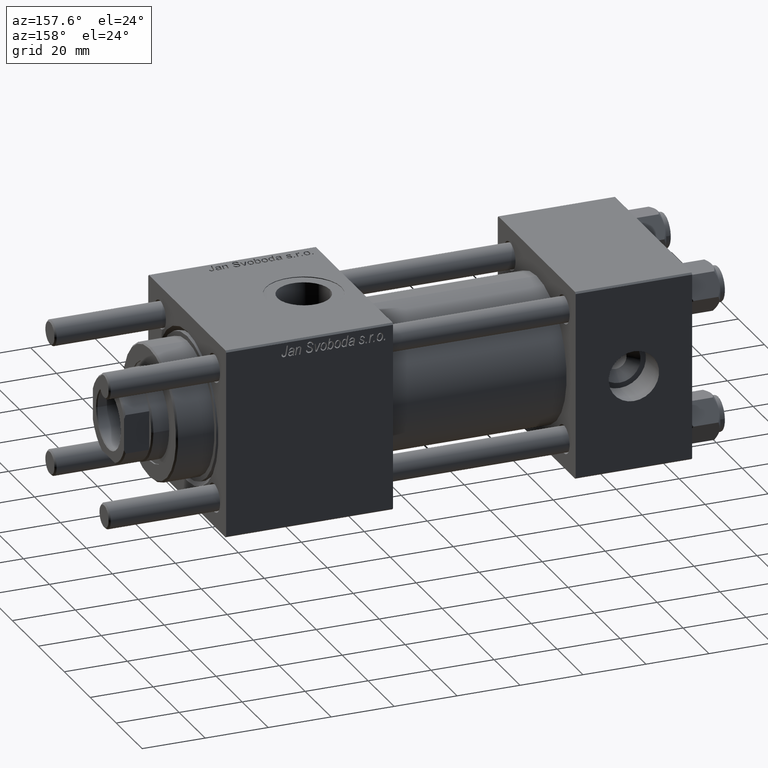
[diagram: clean part render]
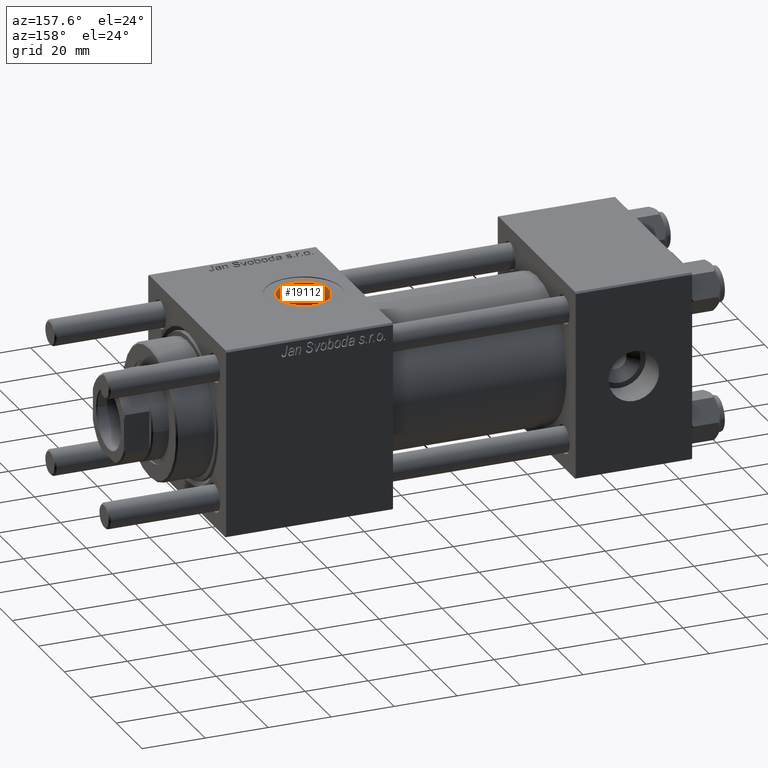
[diagram: same view with one face highlighted and labeled with its STEP entity id]
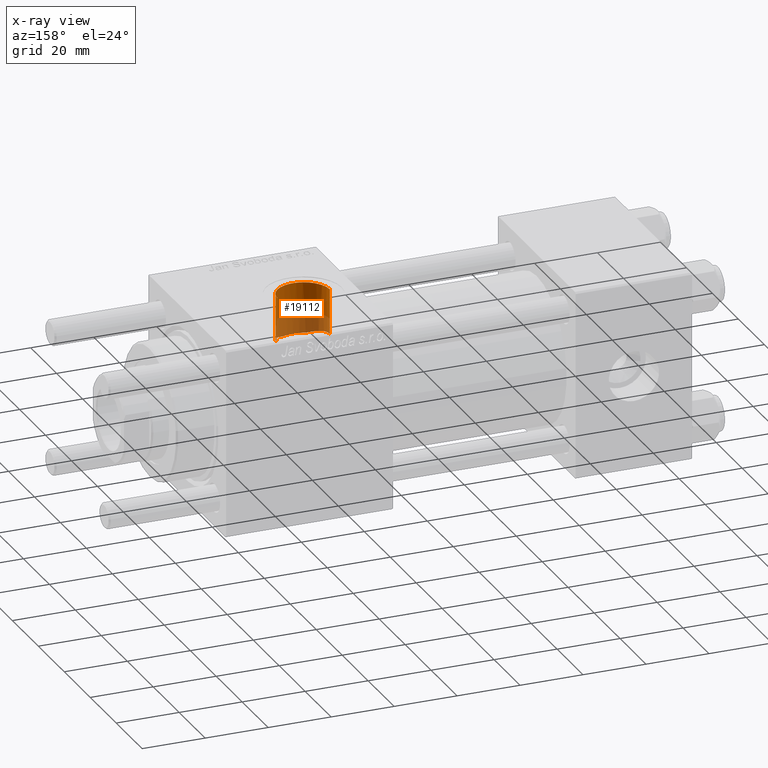
[diagram: x-ray of the same camera — body ghosted, the highlighted face saturated]
A machine part, auxiliary view. The second image highlights one B-rep face of the part: STEP entity #19112.
The next image is the same camera in x-ray: the body ghosted, the highlighted face saturated — about 40% of this face is hidden behind the body in this view.
In plain terms, the highlighted cylindrical surface (edge-blend (fillet) strip) has radius 8.33 mm, axis along (0, 0, -1).
Its self-contained STEP definition (entity closure, byte-faithful):
#716 = CARTESIAN_POINT ( 'NONE',  ( 114.7548501967455081, -7.435724578008534813, 13.59999999999999076 ) ) ;
#772 = VERTEX_POINT ( 'NONE', #2169 ) ;
#1402 = CARTESIAN_POINT ( 'NONE',  ( 119.3300000000000125, -2.449316168263869821E-15, 29.79999999999999716 ) ) ;
#1709 = DIRECTION ( 'NONE',  ( 0.000000000000000000, 0.000000000000000000, -1.000000000000000000 ) ) ;
#2169 = CARTESIAN_POINT ( 'NONE',  ( 119.2999999999999829, -0.7063285354565423946, 15.48389808801387701 ) ) ;
#2445 = CARTESIAN_POINT ( 'NONE',  ( 118.7215032992636736, -3.145651711574988241, 15.18130506059506679 ) ) ;
#3318 = CARTESIAN_POINT ( 'NONE',  ( 115.9563515716283746, -6.704148802593676848, 13.97684504926374061 ) ) ;
#3371 = CARTESIAN_POINT ( 'NONE',  ( 119.2999999999999829, -0.7063285354565423946, 22.48891060056044111 ) ) ;
#4016 = CARTESIAN_POINT ( 'NONE',  ( 102.6700000000000301, -0.3932737753490447297, 15.50000000000000178 ) ) ;
#4313 = CARTESIAN_POINT ( 'NONE',  ( 119.3300000000000125, -2.449316168263869032E-15, 52.79999999999999716 ) ) ;
#4582 = CIRCLE ( 'NONE', #31996, 8.330000000000003624 ) ;
#5055 = EDGE_CURVE ( 'NONE', #41236, #42975, #29410, .T. ) ;
#6869 = EDGE_CURVE ( 'NONE', #58483, #8494, #54793, .T. ) ;
#6886 = CARTESIAN_POINT ( 'NONE',  ( 119.3200361445783102, -0.4708856903043605602, 22.49630535626710781 ) ) ;
#6892 = CARTESIAN_POINT ( 'NONE',  ( 119.2999999999999829, -0.7063285354565423946, 15.48389808801387701 ) ) ;
#7170 = CARTESIAN_POINT ( 'NONE',  ( 117.4654438345355487, -5.264046141787121158, 14.58145607373045571 ) ) ;
#7575 = FACE_OUTER_BOUND ( 'NONE', #22472, .T. ) ;
#8044 = CARTESIAN_POINT ( 'NONE',  ( 119.3300000000000125, -0.2354428451521790588, 22.50000000000000355 ) ) ;
#8494 = VERTEX_POINT ( 'NONE', #716 ) ;
#9701 = CARTESIAN_POINT ( 'NONE',  ( 111.0000000000000000, -3.469446951953613794E-15, 29.79999999999999716 ) ) ;
#10609 = VECTOR ( 'NONE', #49615, 1000.000000000000000 ) ;
#11464 = DIRECTION ( 'NONE',  ( -1.000000000000000000, 0.000000000000000000, 0.000000000000000000 ) ) ;
#11501 = CARTESIAN_POINT ( 'NONE',  ( 102.6700000000000017, -3.469446951953613794E-15, 52.79999999999999716 ) ) ;
#12044 = CYLINDRICAL_SURFACE ( 'NONE', #28385, 8.330000000000003624 ) ;
#12326 = CARTESIAN_POINT ( 'NONE',  ( 103.7356139241942827, -4.094008462183724717, 14.95330218343579709 ) ) ;
#12893 = ORIENTED_EDGE ( 'NONE', *, *, #40272, .T. ) ;
#12914 = CARTESIAN_POINT ( 'NONE',  ( 106.5580543014319232, -7.088758972554062510, 13.78970152060303711 ) ) ;
#15754 = EDGE_CURVE ( 'NONE', #42500, #49350, #20932, .T. ) ;
#15901 = CARTESIAN_POINT ( 'NONE',  ( 111.0000000000000000, -3.469446951953613794E-15, 52.79999999999999716 ) ) ;
#16091 = CARTESIAN_POINT ( 'NONE',  ( 118.5780231920914360, -3.476751477085508135, 15.10853693558145494 ) ) ;
#16754 = CARTESIAN_POINT ( 'NONE',  ( 105.9411433775953384, -6.660665606237818892, 14.00684504084867754 ) ) ;
#17054 = CARTESIAN_POINT ( 'NONE',  ( 103.5555123538905207, -3.757474466741724584, 15.04203335714862710 ) ) ;
#19112 = ADVANCED_FACE ( 'NONE', ( #7575 ), #12044, .F. ) ;
#20932 = LINE ( 'NONE', #11501, #41003 ) ;
#21078 = CARTESIAN_POINT ( 'NONE',  ( 115.0719793388101806, -7.275582495151264872, 13.68755679569670036 ) ) ;
#21207 = CARTESIAN_POINT ( 'NONE',  ( 102.6699999999996180, -2.713081726590588117E-14, 15.50000000000020428 ) ) ;
#21296 = VECTOR ( 'NONE', #41256, 1000.000000000000000 ) ;
#22472 = EDGE_LOOP ( 'NONE', ( #25284, #53835, #49965, #58202, #46570, #25746, #12893, #55277 ) ) ;
#23983 = EDGE_CURVE ( 'NONE', #36298, #41236, #37151, .T. ) ;
#24285 = DIRECTION ( 'NONE',  ( 0.000000000000000000, 0.000000000000000000, 1.000000000000000000 ) ) ;
#25233 = CARTESIAN_POINT ( 'NONE',  ( 116.9996026483513276, -5.789379398717359848, 14.38096412590969564 ) ) ;
#25284 = ORIENTED_EDGE ( 'NONE', *, *, #47976, .F. ) ;
#25524 = CARTESIAN_POINT ( 'NONE',  ( 116.7527035097904502, -6.034536163537686626, 14.27924648151569897 ) ) ;
#25746 = ORIENTED_EDGE ( 'NONE', *, *, #6869, .F. ) ;
#26412 = CARTESIAN_POINT ( 'NONE',  ( 115.3773959923152148, -7.095733675622498460, 13.78217589145789645 ) ) ;
#27736 = DIRECTION ( 'NONE',  ( 1.000000000000000000, 0.000000000000000000, 0.000000000000000000 ) ) ;
#28385 = AXIS2_PLACEMENT_3D ( 'NONE', #15901, #52592, #11464 ) ;
#29100 = CARTESIAN_POINT ( 'NONE',  ( 119.2379181272459761, -1.435846766692881138, 15.45061967576075013 ) ) ;
#29235 = AXIS2_PLACEMENT_3D ( 'NONE', #34031, #24285, #38170 ) ;
#29410 = B_SPLINE_CURVE_WITH_KNOTS ( 'NONE', 3,
 ( #48607, #8044, #6886, #34700 ),
 .UNSPECIFIED., .F., .F.,
 ( 4, 4 ),
 ( 0.0007063285354565328363, 0.001412657070913077816 ),
 .UNSPECIFIED. ) ;
#29677 = CARTESIAN_POINT ( 'NONE',  ( 117.6814859054843367, -4.986894924185446776, 14.67899340481585746 ) ) ;
#30357 = CARTESIAN_POINT ( 'NONE',  ( 103.2388751121312396, -3.050237885181526387, 15.20123122413415828 ) ) ;
#30950 = CARTESIAN_POINT ( 'NONE',  ( 104.1369027071221751, -4.736043274220092414, 14.76252165391442794 ) ) ;
#31245 = CARTESIAN_POINT ( 'NONE',  ( 105.1064272110299385, -5.898864207807588578, 14.33631558793831573 ) ) ;
#31996 = AXIS2_PLACEMENT_3D ( 'NONE', #9701, #50253, #27736 ) ;
#32389 = CARTESIAN_POINT ( 'NONE',  ( 119.2999999999999829, -0.7063285354565423946, 52.79999999999999716 ) ) ;
#34031 = CARTESIAN_POINT ( 'NONE',  ( 111.0000000000000000, -3.469446951953613794E-15, 13.59999999999999076 ) ) ;
#34118 = CARTESIAN_POINT ( 'NONE',  ( 118.2557022334251258, -4.107191428843018244, 14.94947048340120332 ) ) ;
#34700 = CARTESIAN_POINT ( 'NONE',  ( 119.2999999999999829, -0.7063285354565423946, 22.48891060056044111 ) ) ;
#34706 = CARTESIAN_POINT ( 'NONE',  ( 114.7548501967455081, -7.435724578008534813, 13.59999999999999076 ) ) ;
#34800 = CARTESIAN_POINT ( 'NONE',  ( 104.8421395764249837, -5.622509492967815881, 14.44759832893447360 ) ) ;
#35098 = CARTESIAN_POINT ( 'NONE',  ( 102.6699999999996180, -2.713081726590588117E-14, 15.50000000000020428 ) ) ;
#35684 = CARTESIAN_POINT ( 'NONE',  ( 107.2451498032544919, -7.435724578008534813, 13.59999999999999076 ) ) ;
#36298 = VERTEX_POINT ( 'NONE', #1402 ) ;
#37151 = LINE ( 'NONE', #4313, #10609 ) ;
#38170 = DIRECTION ( 'NONE',  ( 1.000000000000000000, 0.000000000000000000, 0.000000000000000000 ) ) ;
#39522 = CARTESIAN_POINT ( 'NONE',  ( 102.8089720379881413, -1.564748737126397504, 15.42568822226018455 ) ) ;
#39573 = EDGE_CURVE ( 'NONE', #772, #42975, #45722, .T. ) ;
#40117 = CARTESIAN_POINT ( 'NONE',  ( 102.8906515532532637, -1.943315834972990430, 15.38227098439064022 ) ) ;
#40272 = EDGE_CURVE ( 'NONE', #58483, #49350, #43634, .T. ) ;
#41003 = VECTOR ( 'NONE', #1709, 1000.000000000000000 ) ;
#41236 = VERTEX_POINT ( 'NONE', #47993 ) ;
#41256 = DIRECTION ( 'NONE',  ( -0.000000000000000000, -0.000000000000000000, 1.000000000000000000 ) ) ;
#42500 = VERTEX_POINT ( 'NONE', #55023 ) ;
#42975 = VERTEX_POINT ( 'NONE', #3371 ) ;
#43160 = CARTESIAN_POINT ( 'NONE',  ( 107.2451498032544919, -7.435724578008534813, 13.59999999999999076 ) ) ;
#43634 = B_SPLINE_CURVE_WITH_KNOTS ( 'NONE', 3,
 ( #35684, #12914, #16754, #31245, #34800, #52871, #30950, #12326, #17054, #30357, #49012, #40117, #39522, #58188, #4016, #35098 ),
 .UNSPECIFIED., .F., .F.,
 ( 4, 2, 2, 2, 2, 2, 2, 4 ),
 ( 1.762687342693953287E-17, 0.002343612196725057811, 0.003515418295087579994, 0.004687224393450101743, 0.005859030491812623059, 0.007030836590175145243, 0.008202642688537667426, 0.009374448786900189609 ),
 .UNSPECIFIED. ) ;
#45722 = LINE ( 'NONE', #32389, #21296 ) ;
#46570 = ORIENTED_EDGE ( 'NONE', *, *, #50665, .T. ) ;
#47160 = CARTESIAN_POINT ( 'NONE',  ( 119.0832175232422827, -2.135847849508031526, 15.36739229984345556 ) ) ;
#47976 = EDGE_CURVE ( 'NONE', #36298, #42500, #4582, .T. ) ;
#47993 = CARTESIAN_POINT ( 'NONE',  ( 119.3300000000000125, 2.755455270027974659E-15, 22.50000000000000355 ) ) ;
#48607 = CARTESIAN_POINT ( 'NONE',  ( 119.3300000000000125, 2.755455270027974659E-15, 22.50000000000000355 ) ) ;
#49012 = CARTESIAN_POINT ( 'NONE',  ( 103.1052114789570311, -2.685204437881589801, 15.27024604249924522 ) ) ;
#49350 = VERTEX_POINT ( 'NONE', #21207 ) ;
#49615 = DIRECTION ( 'NONE',  ( 0.000000000000000000, 0.000000000000000000, -1.000000000000000000 ) ) ;
#49965 = ORIENTED_EDGE ( 'NONE', *, *, #5055, .T. ) ;
#50253 = DIRECTION ( 'NONE',  ( -0.000000000000000000, -0.000000000000000000, -1.000000000000000000 ) ) ;
#50665 = EDGE_CURVE ( 'NONE', #772, #8494, #55714, .T. ) ;
#52197 = CARTESIAN_POINT ( 'NONE',  ( 118.0762267006177098, -4.408899020335755203, 14.86282536370445229 ) ) ;
#52592 = DIRECTION ( 'NONE',  ( 0.000000000000000000, 0.000000000000000000, -1.000000000000000000 ) ) ;
#52871 = CARTESIAN_POINT ( 'NONE',  ( 104.3580999100944950, -5.041529647880462761, 14.66044642165734757 ) ) ;
#53367 = CARTESIAN_POINT ( 'NONE',  ( 116.2310764146980091, -6.491922975836205367, 14.07719584522191347 ) ) ;
#53835 = ORIENTED_EDGE ( 'NONE', *, *, #23983, .T. ) ;
#54793 = CIRCLE ( 'NONE', #29235, 8.330000000000003624 ) ;
#55023 = CARTESIAN_POINT ( 'NONE',  ( 102.6700000000000017, -3.469446951953613794E-15, 29.79999999999999716 ) ) ;
#55277 = ORIENTED_EDGE ( 'NONE', *, *, #15754, .F. ) ;
#55714 = B_SPLINE_CURVE_WITH_KNOTS ( 'NONE', 3,
 ( #6892, #29100, #47160, #2445, #16091, #34118, #52197, #29677, #7170, #25233, #25524, #53367, #3318, #26412, #21078, #34706 ),
 .UNSPECIFIED., .F., .F.,
 ( 4, 2, 2, 2, 2, 2, 2, 4 ),
 ( 3.416651864263509077E-16, 0.002164281519508079021, 0.003246422279261940939, 0.004328563039015803290, 0.005410703798769665208, 0.006492844558523526259, 0.007574985318277389044, 0.008657126078031250963 ),
 .UNSPECIFIED. ) ;
#58188 = CARTESIAN_POINT ( 'NONE',  ( 102.6985123997140477, -0.7916320528489119157, 15.48462509825850653 ) ) ;
#58202 = ORIENTED_EDGE ( 'NONE', *, *, #39573, .F. ) ;
#58483 = VERTEX_POINT ( 'NONE', #43160 ) ;